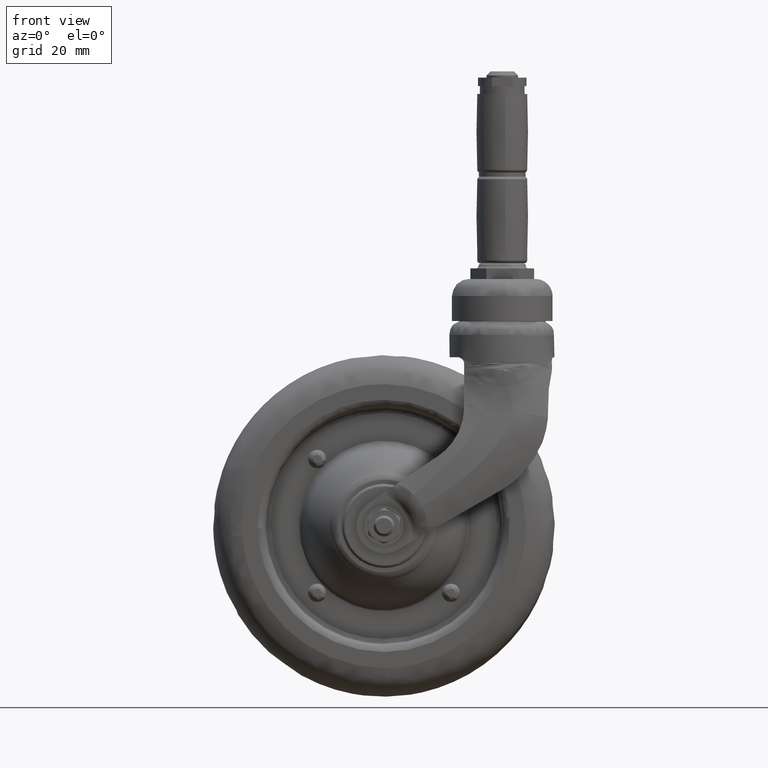
[diagram: clean part render]
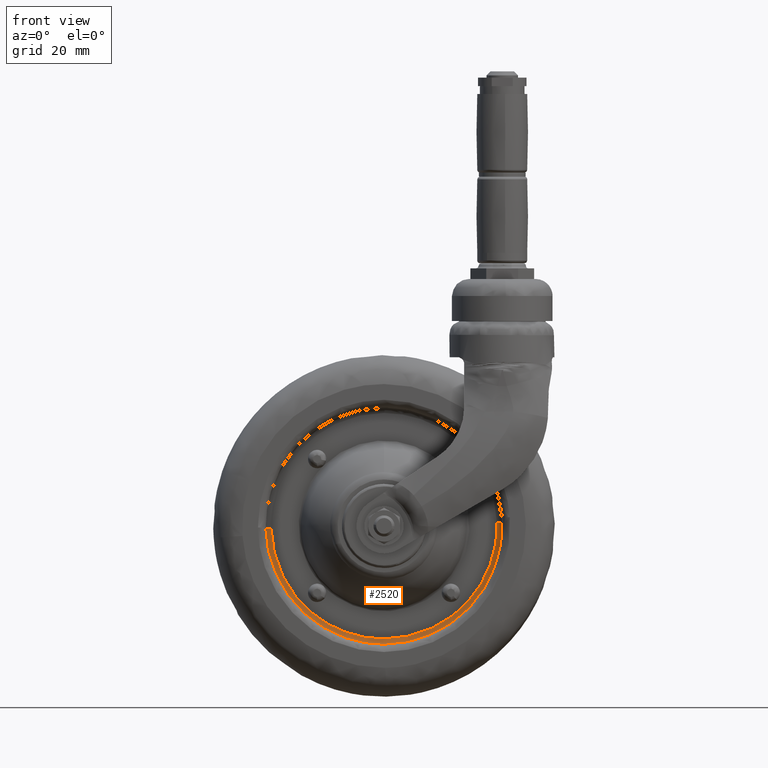
[diagram: same view with one face highlighted and labeled with its STEP entity id]
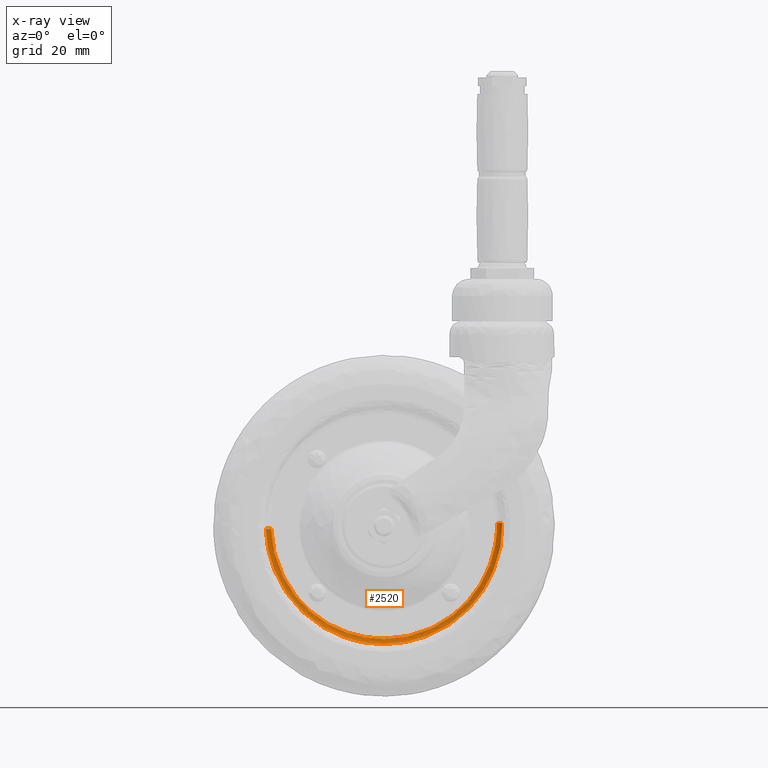
[diagram: x-ray of the same camera — body ghosted, the highlighted face saturated]
A machine part, front view. The second image highlights one B-rep face of the part: STEP entity #2520.
The next image is the same camera in x-ray: the body ghosted, the highlighted face saturated — about 0% of this face is hidden behind the body in this view.
In plain terms, the highlighted face is a freeform B-spline surface patch.
Its self-contained STEP definition (entity closure, byte-faithful):
#1105=CARTESIAN_POINT('',(-14.767864456606540,-3.499999680981143,-42.507766106810323));
#1106=VERTEX_POINT('',#1105);
#1112=CARTESIAN_POINT('',(-44.985788517746322,-3.499998371983491,-1.130854294983760));
#1113=VERTEX_POINT('',#1112);
#1114=CARTESIAN_POINT('',(-14.767864456606539,-3.499999680981144,-42.507766106810323));
#1115=CARTESIAN_POINT('',(-44.202719096775901,-3.499998949997790,-32.281636073653054));
#1116=CARTESIAN_POINT('',(-44.985788517746315,-3.499998371983490,-1.130854294983759));
#1124=(BOUNDED_CURVE()B_SPLINE_CURVE(2,(#1114,#1115,#1116),.UNSPECIFIED.,.F.,.U.)B_SPLINE_CURVE_WITH_KNOTS((3,3),(0.555767570840636,0.745579891769677),.UNSPECIFIED.)CURVE()GEOMETRIC_REPRESENTATION_ITEM()RATIONAL_B_SPLINE_CURVE((0.898477392303113,0.775310703895627,0.989826157681281))REPRESENTATION_ITEM(''));
#1125=EDGE_CURVE('',#1106,#1113,#1124,.T.);
#1144=CARTESIAN_POINT('',(44.985788517746322,-3.499998371983490,1.130854294983762));
#1145=VERTEX_POINT('',#1144);
#1159=CARTESIAN_POINT('',(32.641848763529957,-3.499999170513826,-30.975953727025200));
#1160=VERTEX_POINT('',#1159);
#1161=CARTESIAN_POINT('',(44.985788517746315,-3.499998371983490,1.130854294983763));
#1162=CARTESIAN_POINT('',(44.999999999998671,-3.499998381959236,0.565516445568858));
#1163=CARTESIAN_POINT('',(44.999999999998671,-3.499998392188904,-3.815625E-014));
#1164=CARTESIAN_POINT('',(44.999999999998941,-3.499998716945236,-17.953177827610851));
#1165=CARTESIAN_POINT('',(32.641848763529964,-3.499999170513826,-30.975953727025203));
#1173=(BOUNDED_CURVE()B_SPLINE_CURVE(2,(#1161,#1162,#1163,#1164,#1165),.UNSPECIFIED.,.F.,.U.)B_SPLINE_CURVE_WITH_KNOTS((3,2,3),(0.245579891769677,0.250000000000000,0.371049516583931),.UNSPECIFIED.)CURVE()GEOMETRIC_REPRESENTATION_ITEM()RATIONAL_B_SPLINE_CURVE((0.989826157681281,0.994821521091667,1.0,0.858181669807680,0.853699662115525))REPRESENTATION_ITEM(''));
#1174=EDGE_CURVE('',#1145,#1160,#1173,.T.);
#1276=CARTESIAN_POINT('',(0.0,-3.500000000000000,-45.0));
#1277=VERTEX_POINT('',#1276);
#1278=CARTESIAN_POINT('',(32.641848763529964,-3.499999170513826,-30.975953727025203));
#1279=CARTESIAN_POINT('',(19.333527547892604,-3.499999658955353,-45.000000000000014));
#1280=CARTESIAN_POINT('',(0.0,-3.500000000000000,-45.0));
#1288=(BOUNDED_CURVE()B_SPLINE_CURVE(2,(#1278,#1279,#1280),.UNSPECIFIED.,.F.,.U.)B_SPLINE_CURVE_WITH_KNOTS((3,3),(0.371049516583931,0.500000000000000),.UNSPECIFIED.)CURVE()GEOMETRIC_REPRESENTATION_ITEM()RATIONAL_B_SPLINE_CURVE((0.853699662115525,0.848925111378868,1.0))REPRESENTATION_ITEM(''));
#1289=EDGE_CURVE('',#1160,#1277,#1288,.T.);
#1291=CARTESIAN_POINT('',(0.0,-3.500000000000000,-45.0));
#1292=CARTESIAN_POINT('',(-7.594227691037723,-3.499999859130794,-44.999999999999986));
#1293=CARTESIAN_POINT('',(-14.767864456606539,-3.499999680981143,-42.507766106810323));
#1301=(BOUNDED_CURVE()B_SPLINE_CURVE(2,(#1291,#1292,#1293),.UNSPECIFIED.,.F.,.U.)B_SPLINE_CURVE_WITH_KNOTS((3,3),(0.500000000000000,0.555767570840635),.UNSPECIFIED.)CURVE()GEOMETRIC_REPRESENTATION_ITEM()RATIONAL_B_SPLINE_CURVE((1.0,0.934664226684317,0.898477392303114))REPRESENTATION_ITEM(''));
#1302=EDGE_CURVE('',#1277,#1106,#1301,.T.);
#2431=CARTESIAN_POINT('',(44.980922665457733,-3.639448436268758,1.130731976988386));
#2432=CARTESIAN_POINT('',(46.111654642446112,-3.639448436268758,-43.850190688469311));
#2433=CARTESIAN_POINT('',(1.130731976988398,-3.639448436268758,-44.980922665457733));
#2434=CARTESIAN_POINT('',(-43.850190688469311,-3.639448436268758,-46.111654642446112));
#2435=CARTESIAN_POINT('',(-44.980922665457733,-3.639448436268758,-1.130731976988401));
#2436=CARTESIAN_POINT('',(45.141218083182260,-1.345327001077418,1.134761488697914));
#2437=CARTESIAN_POINT('',(46.275979571880200,-1.345327001077418,-44.006456594484334));
#2438=CARTESIAN_POINT('',(1.134761488697927,-1.345327001077418,-45.141218083182260));
#2439=CARTESIAN_POINT('',(-44.006456594484334,-1.345327001077418,-46.275979571880200));
#2440=CARTESIAN_POINT('',(-45.141218083182260,-1.345327001077418,-1.134761488697929));
#2441=CARTESIAN_POINT('',(42.847761390452796,-1.504815396527156,1.077108495681417));
#2442=CARTESIAN_POINT('',(43.924869886134218,-1.504815396527156,-41.770652894771359));
#2443=CARTESIAN_POINT('',(1.077108495681429,-1.504815396527156,-42.847761390452796));
#2444=CARTESIAN_POINT('',(-41.770652894771359,-1.504815396527156,-43.924869886134218));
#2445=CARTESIAN_POINT('',(-42.847761390452796,-1.504815396527156,-1.077108495681431));
#2453=(BOUNDED_SURFACE()B_SPLINE_SURFACE(2,2,((#2431,#2436,#2441),(#2432,#2437,#2442),(#2433,#2438,#2443),(#2434,#2439,#2444),(#2435,#2440,#2445)),.UNSPECIFIED.,.F.,.F.,.U.)B_SPLINE_SURFACE_WITH_KNOTS((3,2,3),(3,3),(0.0,74.550376672238883,149.100753344477790),(0.0,3.644742430681564),.UNSPECIFIED.)GEOMETRIC_REPRESENTATION_ITEM()RATIONAL_B_SPLINE_SURFACE(((0.910892955247796,0.599412781383010,0.915966917428979),(0.644098585590771,0.423848842445816,0.647686418656570),(0.910892955247796,0.599412781383010,0.915966917428979),(0.644098585590771,0.423848842445816,0.647686418656570),(0.910892955247796,0.599412781383010,0.915966917428979)))REPRESENTATION_ITEM('')SURFACE());
#2454=ORIENTED_EDGE('',*,*,#1174,.F.);
#2455=CARTESIAN_POINT('',(42.986420140294030,-1.500000000000000,1.080594104099054));
#2456=VERTEX_POINT('',#2455);
#2457=CARTESIAN_POINT('',(44.985788517746315,-3.499998371983490,1.130854294983762));
#2458=CARTESIAN_POINT('',(44.985786890246771,-1.500000002225366,1.130854254037994));
#2459=CARTESIAN_POINT('',(42.986420140294022,-1.500000000000001,1.080594104099054));
#2467=(BOUNDED_CURVE()B_SPLINE_CURVE(2,(#2457,#2458,#2459),.UNSPECIFIED.,.F.,.U.)B_SPLINE_CURVE_WITH_KNOTS((3,3),(-1.723440443890266,-0.263586880079417),.UNSPECIFIED.)CURVE()GEOMETRIC_REPRESENTATION_ITEM()RATIONAL_B_SPLINE_CURVE((0.883897271757023,0.626638877779588,0.888510408649402))REPRESENTATION_ITEM(''));
#2468=EDGE_CURVE('',#1145,#2456,#2467,.T.);
#2469=ORIENTED_EDGE('',*,*,#2468,.T.);
#2470=CARTESIAN_POINT('',(0.0,-1.500000000000000,-43.0));
#2471=VERTEX_POINT('',#2470);
#2472=CARTESIAN_POINT('',(0.0,-1.500000000000000,-43.0));
#2473=CARTESIAN_POINT('',(42.999999999999993,-1.500000000000000,-42.999999999999993));
#2474=CARTESIAN_POINT('',(43.0,-1.500000000000000,0.0));
#2475=CARTESIAN_POINT('',(42.999999999999993,-1.500000000000000,0.540382381312797));
#2476=CARTESIAN_POINT('',(42.986420140294030,-1.500000000000000,1.080594104099055));
#2484=(BOUNDED_CURVE()B_SPLINE_CURVE(2,(#2472,#2473,#2474,#2475,#2476),.UNSPECIFIED.,.F.,.U.)B_SPLINE_CURVE_WITH_KNOTS((3,2,3),(0.500000000000000,0.750000000000000,0.754420108230253),.UNSPECIFIED.)CURVE()GEOMETRIC_REPRESENTATION_ITEM()RATIONAL_B_SPLINE_CURVE((1.0,0.707106781186548,1.0,0.994821521091749,0.989826157681439))REPRESENTATION_ITEM(''));
#2485=EDGE_CURVE('',#2471,#2456,#2484,.T.);
#2486=ORIENTED_EDGE('',*,*,#2485,.F.);
#2487=CARTESIAN_POINT('',(-42.986420140294022,-1.500000000000000,-1.080594104099051));
#2488=VERTEX_POINT('',#2487);
#2489=CARTESIAN_POINT('',(-42.986420140294022,-1.500000000000000,-1.080594104099051));
#2490=CARTESIAN_POINT('',(-41.932648675753114,-1.500000000000000,-42.999999999999986));
#2491=CARTESIAN_POINT('',(0.0,-1.500000000000000,-43.0));
#2499=(BOUNDED_CURVE()B_SPLINE_CURVE(2,(#2489,#2490,#2491),.UNSPECIFIED.,.F.,.U.)B_SPLINE_CURVE_WITH_KNOTS((3,3),(0.254420108230254,0.500000000000000),.UNSPECIFIED.)CURVE()GEOMETRIC_REPRESENTATION_ITEM()RATIONAL_B_SPLINE_CURVE((0.989826157681437,0.712285260094800,1.0))REPRESENTATION_ITEM(''));
#2500=EDGE_CURVE('',#2488,#2471,#2499,.T.);
#2501=ORIENTED_EDGE('',*,*,#2500,.F.);
#2502=CARTESIAN_POINT('',(-44.985788517746315,-3.499998371983491,-1.130854294983760));
#2503=CARTESIAN_POINT('',(-44.985786890246793,-1.500000002225368,-1.130854254037988));
#2504=CARTESIAN_POINT('',(-42.986420140294022,-1.500000000000000,-1.080594104099051));
#2512=(BOUNDED_CURVE()B_SPLINE_CURVE(2,(#2502,#2503,#2504),.UNSPECIFIED.,.F.,.U.)B_SPLINE_CURVE_WITH_KNOTS((3,3),(-1.723440443890266,-0.263586880079417),.UNSPECIFIED.)CURVE()GEOMETRIC_REPRESENTATION_ITEM()RATIONAL_B_SPLINE_CURVE((0.883897271757023,0.626638877779588,0.888510408649402))REPRESENTATION_ITEM(''));
#2513=EDGE_CURVE('',#1113,#2488,#2512,.T.);
#2514=ORIENTED_EDGE('',*,*,#2513,.F.);
#2515=ORIENTED_EDGE('',*,*,#1125,.F.);
#2516=ORIENTED_EDGE('',*,*,#1302,.F.);
#2517=ORIENTED_EDGE('',*,*,#1289,.F.);
#2518=EDGE_LOOP('',(#2454,#2469,#2486,#2501,#2514,#2515,#2516,#2517));
#2519=FACE_OUTER_BOUND('',#2518,.T.);
#2520=ADVANCED_FACE('',(#2519),#2453,.F.);